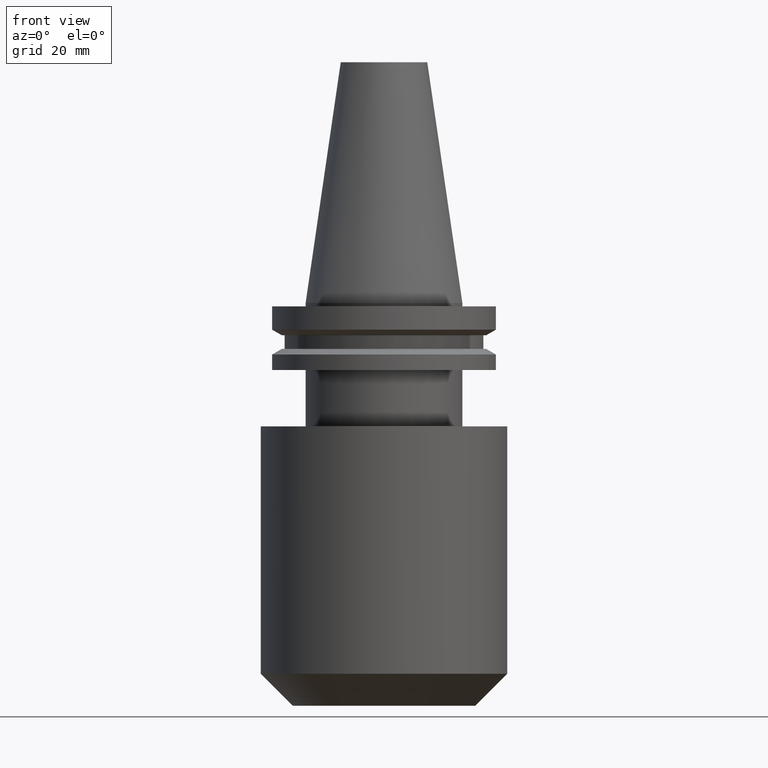
[diagram: clean part render]
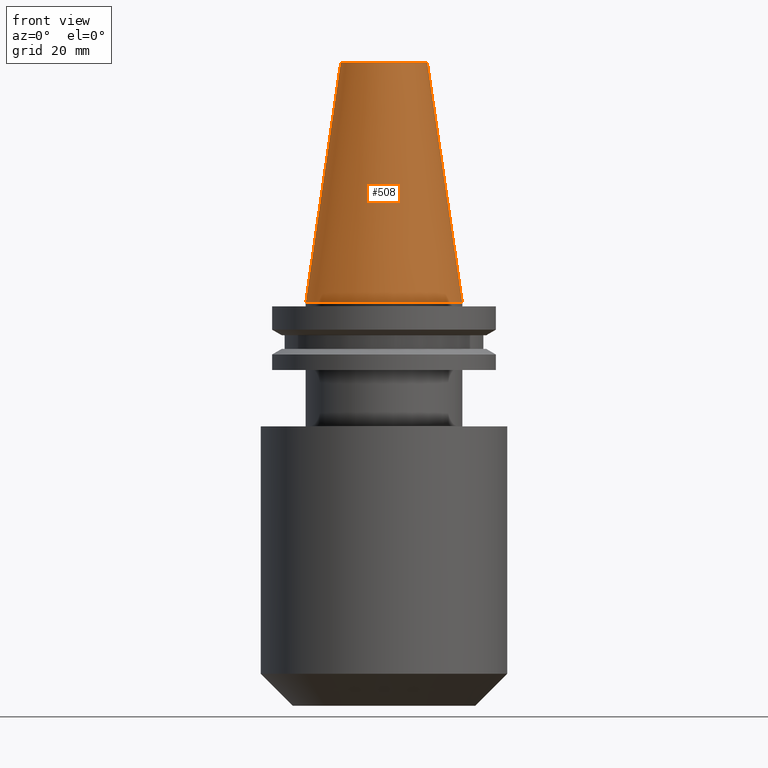
[diagram: same view with one face highlighted and labeled with its STEP entity id]
A machine part, front view. The second image highlights one B-rep face of the part: STEP entity #508.
In plain terms, the highlighted conical surface has half-angle 8.297 deg.
Its self-contained STEP definition (entity closure, byte-faithful):
#7 = DIRECTION ( 'NONE',  ( -0.000000000000000000, -0.000000000000000000, 1.000000000000000000 ) ) ;
#39 = DIRECTION ( 'NONE',  ( -0.1443082272672999711, 0.000000000000000000, -0.9895327864921755756 ) ) ;
#41 = VERTEX_POINT ( 'NONE', #554 ) ;
#95 = VERTEX_POINT ( 'NONE', #734 ) ;
#98 = ORIENTED_EDGE ( 'NONE', *, *, #518, .F. ) ;
#111 = CARTESIAN_POINT ( 'NONE',  ( -22.22500000000000142, 0.000000000000000000, 0.000000000000000000 ) ) ;
#116 = CIRCLE ( 'NONE', #383, 12.27178102086201150 ) ;
#131 = EDGE_CURVE ( 'NONE', #562, #372, #173, .T. ) ;
#157 = DIRECTION ( 'NONE',  ( 1.000000000000000000, 0.000000000000000000, 0.000000000000000000 ) ) ;
#170 = EDGE_CURVE ( 'NONE', #41, #372, #556, .T. ) ;
#173 = CIRCLE ( 'NONE', #221, 22.22500000000000142 ) ;
#208 = FACE_OUTER_BOUND ( 'NONE', #611, .T. ) ;
#221 = AXIS2_PLACEMENT_3D ( 'NONE', #696, #7, #683 ) ;
#222 = ORIENTED_EDGE ( 'NONE', *, *, #170, .F. ) ;
#299 = CARTESIAN_POINT ( 'NONE',  ( 0.000000000000000000, 0.000000000000000000, 68.25000000000000000 ) ) ;
#319 = EDGE_CURVE ( 'NONE', #95, #562, #446, .T. ) ;
#337 = VECTOR ( 'NONE', #39, 999.9999999999998863 ) ;
#345 = DIRECTION ( 'NONE',  ( 0.1443082272672999711, 1.767266086135276757E-17, -0.9895327864921755756 ) ) ;
#372 = VERTEX_POINT ( 'NONE', #593 ) ;
#383 = AXIS2_PLACEMENT_3D ( 'NONE', #299, #821, #157 ) ;
#422 = CARTESIAN_POINT ( 'NONE',  ( 22.22500000000000142, 2.721777511104992849E-15, 0.000000000000000000 ) ) ;
#446 = LINE ( 'NONE', #111, #337 ) ;
#472 = DIRECTION ( 'NONE',  ( 0.000000000000000000, 0.000000000000000000, -1.000000000000000000 ) ) ;
#488 = VECTOR ( 'NONE', #345, 999.9999999999998863 ) ;
#508 = ADVANCED_FACE ( 'NONE', ( #208 ), #546, .T. ) ;
#518 = EDGE_CURVE ( 'NONE', #95, #41, #116, .T. ) ;
#546 = CONICAL_SURFACE ( 'NONE', #592, 22.22500000000000142, 0.1448138465474119174 ) ;
#554 = CARTESIAN_POINT ( 'NONE',  ( 12.27178102086201150, 2.112318622904291439E-15, 68.25000000000000000 ) ) ;
#556 = LINE ( 'NONE', #422, #488 ) ;
#560 = CARTESIAN_POINT ( 'NONE',  ( 0.000000000000000000, 0.000000000000000000, 0.000000000000000000 ) ) ;
#562 = VERTEX_POINT ( 'NONE', #603 ) ;
#592 = AXIS2_PLACEMENT_3D ( 'NONE', #560, #472, #827 ) ;
#593 = CARTESIAN_POINT ( 'NONE',  ( 22.22500000000000142, 2.721777511104992849E-15, 0.000000000000000000 ) ) ;
#603 = CARTESIAN_POINT ( 'NONE',  ( -22.22500000000000142, 0.000000000000000000, 0.000000000000000000 ) ) ;
#611 = EDGE_LOOP ( 'NONE', ( #222, #98, #698, #718 ) ) ;
#683 = DIRECTION ( 'NONE',  ( 1.000000000000000000, 0.000000000000000000, 0.000000000000000000 ) ) ;
#696 = CARTESIAN_POINT ( 'NONE',  ( 0.000000000000000000, 0.000000000000000000, 0.000000000000000000 ) ) ;
#698 = ORIENTED_EDGE ( 'NONE', *, *, #319, .T. ) ;
#718 = ORIENTED_EDGE ( 'NONE', *, *, #131, .T. ) ;
#734 = CARTESIAN_POINT ( 'NONE',  ( -12.27178102086201150, 0.000000000000000000, 68.25000000000000000 ) ) ;
#821 = DIRECTION ( 'NONE',  ( -0.000000000000000000, -0.000000000000000000, 1.000000000000000000 ) ) ;
#827 = DIRECTION ( 'NONE',  ( -1.000000000000000000, 0.000000000000000000, 0.000000000000000000 ) ) ;